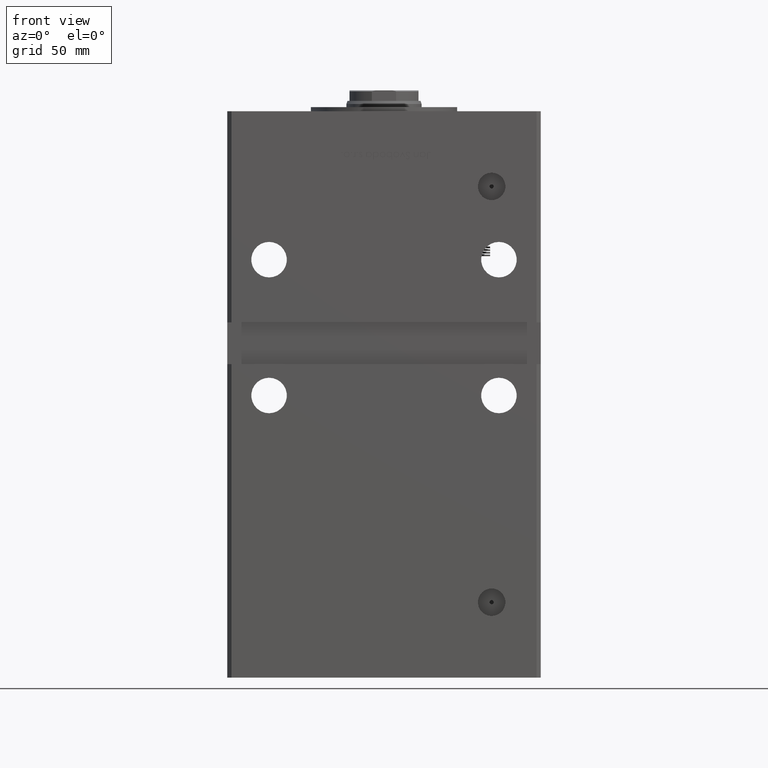
[diagram: clean part render]
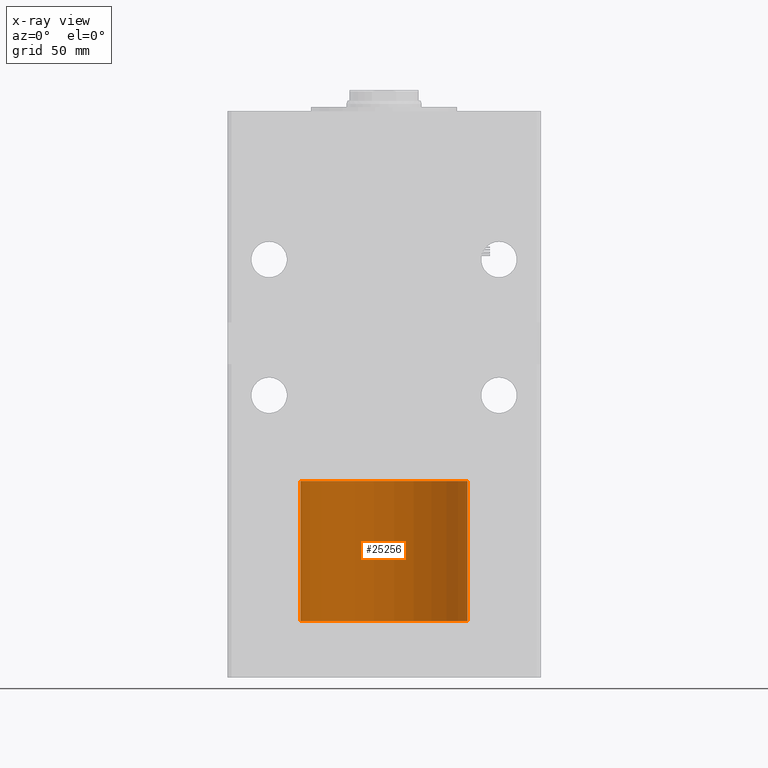
[diagram: x-ray — body ghosted, one internal face saturated and labeled with its STEP entity id]
A machine part, front view, then the same camera in x-ray: the body is ghosted and one INTERNAL B-rep face — a face not visible from any outside direction — is saturated and labeled: STEP entity #25256.
In plain terms, the highlighted cylindrical surface (partial cylindrical patch) has radius 40 mm, axis along (0, -0, 1).
Its self-contained STEP definition (entity closure, byte-faithful):
#242 = ORIENTED_EDGE ( 'NONE', *, *, #9016, .T. ) ;
#1418 = AXIS2_PLACEMENT_3D ( 'NONE', #28784, #24554, #3697 ) ;
#2185 = ORIENTED_EDGE ( 'NONE', *, *, #10963, .F. ) ;
#2386 = DIRECTION ( 'NONE',  ( 1.000000000000000000, -9.892608450469889463E-18, -0.000000000000000000 ) ) ;
#2671 = CARTESIAN_POINT ( 'NONE',  ( -3.957043380187955169E-16, -39.99999999999999289, 4.898587196589412237E-15 ) ) ;
#3468 = EDGE_CURVE ( 'NONE', #12446, #38383, #21250, .T. ) ;
#3697 = DIRECTION ( 'NONE',  ( 0.000000000000000000, 1.000000000000000000, 0.000000000000000000 ) ) ;
#9016 = EDGE_CURVE ( 'NONE', #40871, #38383, #54530, .T. ) ;
#9219 = CARTESIAN_POINT ( 'NONE',  ( -187.0000000000000000, -40.00000000000000000, 4.898587196589413026E-15 ) ) ;
#9241 = DIRECTION ( 'NONE',  ( 9.892608450469889463E-18, 1.000000000000000000, 0.000000000000000000 ) ) ;
#9277 = CARTESIAN_POINT ( 'NONE',  ( -254.0000000000000000, -39.99999999999999289, 4.898587196589412237E-15 ) ) ;
#10963 = EDGE_CURVE ( 'NONE', #46785, #12446, #41551, .T. ) ;
#12446 = VERTEX_POINT ( 'NONE', #21947 ) ;
#13750 = DIRECTION ( 'NONE',  ( 1.000000000000000000, -9.892608450469889463E-18, -0.000000000000000000 ) ) ;
#17208 = DIRECTION ( 'NONE',  ( 1.000000000000000000, -9.892608450469889463E-18, -0.000000000000000000 ) ) ;
#19441 = EDGE_CURVE ( 'NONE', #46785, #40871, #27606, .T. ) ;
#19594 = CARTESIAN_POINT ( 'NONE',  ( 3.957043380187955169E-16, 39.99999999999999289, 0.000000000000000000 ) ) ;
#21250 = CIRCLE ( 'NONE', #1418, 40.00000000000000000 ) ;
#21947 = CARTESIAN_POINT ( 'NONE',  ( -187.0000000000000000, 40.00000000000000000, 0.000000000000000000 ) ) ;
#22077 = ORIENTED_EDGE ( 'NONE', *, *, #3468, .F. ) ;
#24554 = DIRECTION ( 'NONE',  ( 1.000000000000000000, -9.892608450469889463E-18, -0.000000000000000000 ) ) ;
#25256 = ADVANCED_FACE ( 'NONE', ( #34604 ), #51554, .T. ) ;
#27606 = CIRCLE ( 'NONE', #44713, 39.99999999999999289 ) ;
#28784 = CARTESIAN_POINT ( 'NONE',  ( -187.0000000000000000, 1.151943042610621258E-16, 0.000000000000000000 ) ) ;
#30658 = DIRECTION ( 'NONE',  ( 1.000000000000000000, -9.892608450469889463E-18, -0.000000000000000000 ) ) ;
#31327 = VECTOR ( 'NONE', #2386, 1000.000000000000000 ) ;
#33852 = EDGE_LOOP ( 'NONE', ( #43661, #242, #22077, #2185 ) ) ;
#34604 = FACE_OUTER_BOUND ( 'NONE', #33852, .T. ) ;
#38348 = CARTESIAN_POINT ( 'NONE',  ( -254.0000000000000000, 7.779990704425449432E-16, 0.000000000000000000 ) ) ;
#38383 = VERTEX_POINT ( 'NONE', #9219 ) ;
#40871 = VERTEX_POINT ( 'NONE', #9277 ) ;
#41551 = LINE ( 'NONE', #19594, #53028 ) ;
#43661 = ORIENTED_EDGE ( 'NONE', *, *, #19441, .T. ) ;
#44713 = AXIS2_PLACEMENT_3D ( 'NONE', #38348, #17208, #55558 ) ;
#46613 = AXIS2_PLACEMENT_3D ( 'NONE', #47851, #30658, #9241 ) ;
#46785 = VERTEX_POINT ( 'NONE', #53127 ) ;
#47851 = CARTESIAN_POINT ( 'NONE',  ( 0.000000000000000000, -1.734723475976807094E-15, 0.000000000000000000 ) ) ;
#51554 = CYLINDRICAL_SURFACE ( 'NONE', #46613, 39.99999999999999289 ) ;
#53028 = VECTOR ( 'NONE', #13750, 1000.000000000000000 ) ;
#53127 = CARTESIAN_POINT ( 'NONE',  ( -254.0000000000000000, 39.99999999999999289, 0.000000000000000000 ) ) ;
#54530 = LINE ( 'NONE', #2671, #31327 ) ;
#55558 = DIRECTION ( 'NONE',  ( 0.000000000000000000, 1.000000000000000000, 0.000000000000000000 ) ) ;